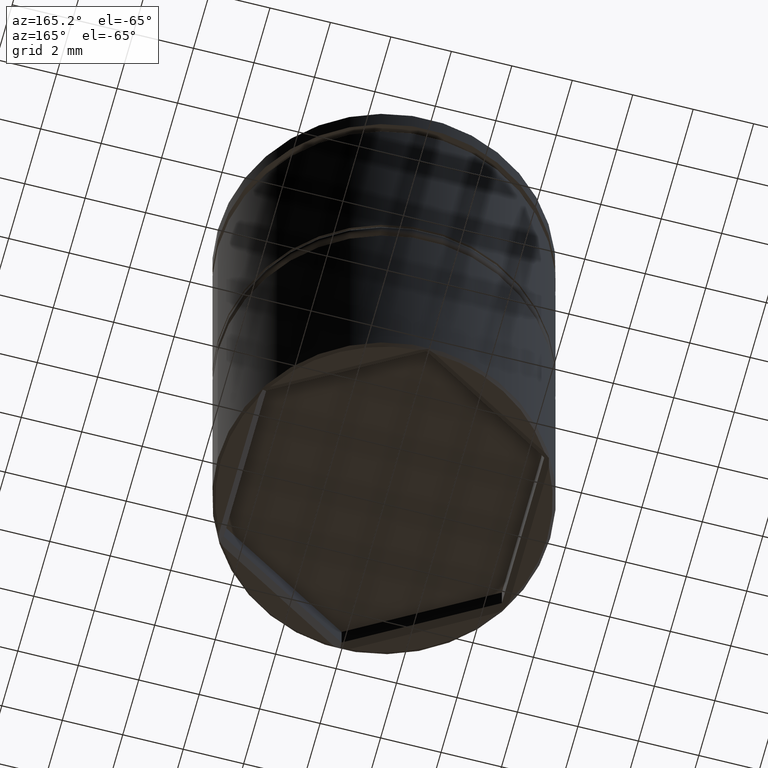
[diagram: clean part render]
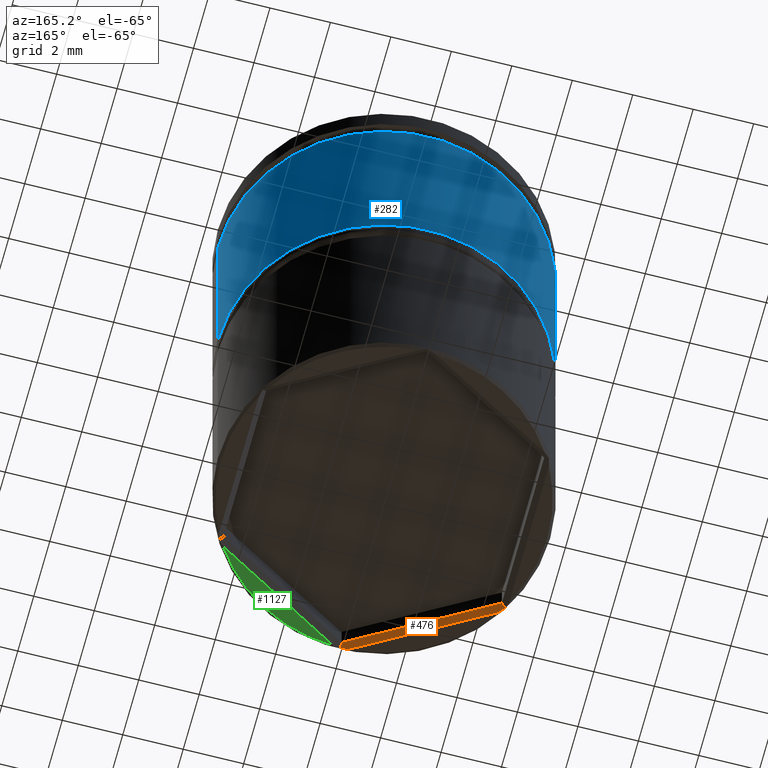
[diagram: same view with three faces highlighted in distinct colors, each labeled with its STEP entity id]
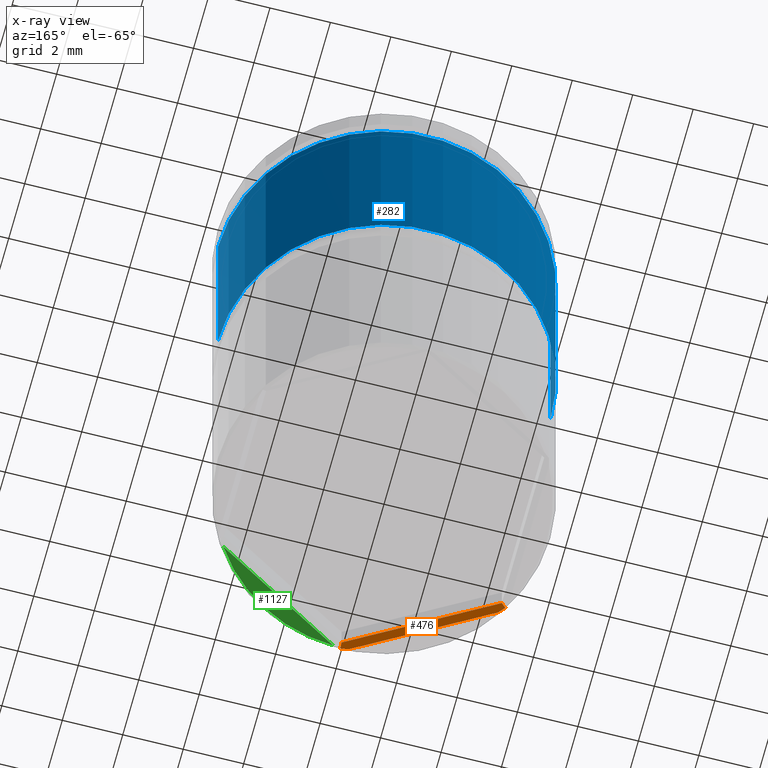
[diagram: x-ray of the same camera — body ghosted, the three highlighted faces saturated]
A machine part, auxiliary view with three faces highlighted in distinct colors.
The next image is the same camera in x-ray (body ghosted, the three faces saturated) — at least one of them is partly hidden behind the body in this view.
Their STEP definitions:

[orange] entity #476 — the highlighted planar face has unit normal (0.3536, 0.6124, -0.7071).
#16 = CARTESIAN_POINT ( 'NONE',  ( -4.733836474405099359, -2.733081762797453074, -17.43383647440510131 ) ) ;
#24 = CARTESIAN_POINT ( 'NONE',  ( -0.1717818557229343901, -5.419049164421317677, -17.47892516860715872 ) ) ;
#56 = PLANE ( 'NONE',  #658 ) ;
#62 = EDGE_CURVE ( 'NONE', #938, #1283, #570, .T. ) ;
#116 = VECTOR ( 'NONE', #1279, 1000.000000000000114 ) ;
#147 = CARTESIAN_POINT ( 'NONE',  ( -0.2575714714371473701, -5.393853625850606903, -17.50000000000000000 ) ) ;
#178 = EDGE_CURVE ( 'NONE', #817, #1276, #1154, .T. ) ;
#218 = CARTESIAN_POINT ( 'NONE',  ( -4.600000000000003197, -2.655811238272279606, -17.30000000000000426 ) ) ;
#322 = VECTOR ( 'NONE', #984, 1000.000000000000000 ) ;
#360 = CARTESIAN_POINT ( 'NONE',  ( -8.646952822150503169E-16, -5.311622476544560989, -17.30000000000000426 ) ) ;
#370 = LINE ( 'NONE', #1213, #1273 ) ;
#390 = ORIENTED_EDGE ( 'NONE', *, *, #487, .F. ) ;
#412 = CARTESIAN_POINT ( 'NONE',  ( -8.646952822150503169E-16, -5.311622476544560989, -17.30000000000000426 ) ) ;
#459 = CARTESIAN_POINT ( 'NONE',  ( -1.204079547557657958E-15, -5.466163525594906147, -17.43383647440510131 ) ) ;
#465 = CARTESIAN_POINT ( 'NONE',  ( -4.600000000000003197, -2.655811238272279606, -17.30000000000000426 ) ) ;
#476 = ADVANCED_FACE ( 'NONE', ( #1087 ), #56, .T. ) ;
#487 = EDGE_CURVE ( 'NONE', #1276, #938, #507, .T. ) ;
#489 = CARTESIAN_POINT ( 'NONE',  ( -4.542428528562857615, -2.919990250480010374, -17.50000000000000000 ) ) ;
#507 = B_SPLINE_CURVE_WITH_KNOTS ( 'NONE', 3,
 ( #1208, #24, #1331, #459 ),
 .UNSPECIFIED., .F., .F.,
 ( 4, 4 ),
 ( 1.626303258728256651E-19, 0.0002755891808806622484 ),
 .UNSPECIFIED. ) ;
#550 = CARTESIAN_POINT ( 'NONE',  ( -8.646952822150503169E-16, -5.311622476544560989, -17.30000000000000426 ) ) ;
#561 = CARTESIAN_POINT ( 'NONE',  ( -4.607143312884228514, -2.858292033175950930, -17.47892516860715872 ) ) ;
#570 = LINE ( 'NONE', #550, #116 ) ;
#658 = AXIS2_PLACEMENT_3D ( 'NONE', #360, #792, #1116 ) ;
#755 = VERTEX_POINT ( 'NONE', #218 ) ;
#792 = DIRECTION ( 'NONE',  ( 0.3535533905932736198, 0.6123724356957939152, -0.7071067811865482389 ) ) ;
#817 = VERTEX_POINT ( 'NONE', #1368 ) ;
#822 = CARTESIAN_POINT ( 'NONE',  ( -0.1000000000000005607, -5.484827557301448664, -17.50000000000000000 ) ) ;
#833 = ORIENTED_EDGE ( 'NONE', *, *, #62, .F. ) ;
#882 = CARTESIAN_POINT ( 'NONE',  ( -4.733836474405099359, -2.733081762797453074, -17.43383647440510131 ) ) ;
#903 = DIRECTION ( 'NONE',  ( 0.6546536707079767536, 0.3779644730092285299, 0.6546536707079767536 ) ) ;
#938 = VERTEX_POINT ( 'NONE', #1084 ) ;
#983 = EDGE_CURVE ( 'NONE', #1022, #755, #370, .T. ) ;
#984 = DIRECTION ( 'NONE',  ( -0.8660254037844384856, 0.5000000000000002220, 0.000000000000000000 ) ) ;
#1019 = DIRECTION ( 'NONE',  ( 0.8660254037844385966, -0.5000000000000002220, 0.000000000000000000 ) ) ;
#1022 = VERTEX_POINT ( 'NONE', #16 ) ;
#1036 = VECTOR ( 'NONE', #1019, 999.9999999999998863 ) ;
#1084 = CARTESIAN_POINT ( 'NONE',  ( -1.204079547557657958E-15, -5.466163525594906147, -17.43383647440510131 ) ) ;
#1087 = FACE_OUTER_BOUND ( 'NONE', #1199, .T. ) ;
#1091 = CARTESIAN_POINT ( 'NONE',  ( -4.670951587135924399, -2.795966650066628034, -17.45685394065973739 ) ) ;
#1092 = ORIENTED_EDGE ( 'NONE', *, *, #1149, .F. ) ;
#1116 = DIRECTION ( 'NONE',  ( 0.8660254037844384856, -0.5000000000000002220, 0.000000000000000000 ) ) ;
#1122 = ORIENTED_EDGE ( 'NONE', *, *, #1201, .F. ) ;
#1149 = EDGE_CURVE ( 'NONE', #1283, #755, #1221, .T. ) ;
#1154 = LINE ( 'NONE', #822, #1036 ) ;
#1199 = EDGE_LOOP ( 'NONE', ( #1339, #1092, #833, #390, #1336, #1122 ) ) ;
#1201 = EDGE_CURVE ( 'NONE', #1022, #817, #1254, .T. ) ;
#1208 = CARTESIAN_POINT ( 'NONE',  ( -0.2575714714371473701, -5.393853625850606903, -17.50000000000000000 ) ) ;
#1213 = CARTESIAN_POINT ( 'NONE',  ( -4.600000000000003197, -2.655811238272279606, -17.30000000000000426 ) ) ;
#1221 = LINE ( 'NONE', #465, #322 ) ;
#1254 = B_SPLINE_CURVE_WITH_KNOTS ( 'NONE', 3,
 ( #882, #1091, #561, #489 ),
 .UNSPECIFIED., .F., .F.,
 ( 4, 4 ),
 ( 0.000000000000000000, 0.0002755891808806624653 ),
 .UNSPECIFIED. ) ;
#1273 = VECTOR ( 'NONE', #903, 1000.000000000000114 ) ;
#1276 = VERTEX_POINT ( 'NONE', #147 ) ;
#1279 = DIRECTION ( 'NONE',  ( 1.792096372221770271E-15, 0.7559289460184548393, 0.6546536707079767536 ) ) ;
#1283 = VERTEX_POINT ( 'NONE', #412 ) ;
#1331 = CARTESIAN_POINT ( 'NONE',  ( -0.08590235352381503375, -5.443146059340268295, -17.45685394065973739 ) ) ;
#1336 = ORIENTED_EDGE ( 'NONE', *, *, #178, .F. ) ;
#1339 = ORIENTED_EDGE ( 'NONE', *, *, #983, .T. ) ;
#1368 = CARTESIAN_POINT ( 'NONE',  ( -4.542428528562857615, -2.919990250480010374, -17.50000000000000000 ) ) ;

[blue] entity #282 — the highlighted cylindrical surface (partial cylindrical patch) has radius 5.5 mm, axis along (-0, -0, 1).
#43 = LINE ( 'NONE', #478, #974 ) ;
#90 = CARTESIAN_POINT ( 'NONE',  ( -5.500000000000000000, 6.735557395310442023E-16, -8.500000000000000000 ) ) ;
#150 = VERTEX_POINT ( 'NONE', #1257 ) ;
#157 = VERTEX_POINT ( 'NONE', #90 ) ;
#165 = CIRCLE ( 'NONE', #345, 5.500000000000000000 ) ;
#186 = CARTESIAN_POINT ( 'NONE',  ( -5.500000000000000000, 6.735557395310442023E-16, -1.425000000000005151 ) ) ;
#187 = AXIS2_PLACEMENT_3D ( 'NONE', #782, #1320, #257 ) ;
#257 = DIRECTION ( 'NONE',  ( 1.000000000000000000, 0.000000000000000000, 0.000000000000000000 ) ) ;
#259 = VERTEX_POINT ( 'NONE', #186 ) ;
#266 = EDGE_CURVE ( 'NONE', #1086, #157, #165, .T. ) ;
#267 = ORIENTED_EDGE ( 'NONE', *, *, #966, .F. ) ;
#275 = AXIS2_PLACEMENT_3D ( 'NONE', #417, #762, #535 ) ;
#282 = ADVANCED_FACE ( 'NONE', ( #1148 ), #1364, .T. ) ;
#307 = VECTOR ( 'NONE', #690, 1000.000000000000000 ) ;
#345 = AXIS2_PLACEMENT_3D ( 'NONE', #616, #1041, #726 ) ;
#417 = CARTESIAN_POINT ( 'NONE',  ( 0.000000000000000000, 0.000000000000000000, 0.000000000000000000 ) ) ;
#478 = CARTESIAN_POINT ( 'NONE',  ( 5.500000000000000000, 0.000000000000000000, 0.000000000000000000 ) ) ;
#512 = ORIENTED_EDGE ( 'NONE', *, *, #1180, .T. ) ;
#535 = DIRECTION ( 'NONE',  ( 1.000000000000000000, 0.000000000000000000, 0.000000000000000000 ) ) ;
#559 = EDGE_CURVE ( 'NONE', #259, #150, #948, .T. ) ;
#616 = CARTESIAN_POINT ( 'NONE',  ( 0.000000000000000000, 0.000000000000000000, -8.500000000000000000 ) ) ;
#690 = DIRECTION ( 'NONE',  ( -0.000000000000000000, -0.000000000000000000, 1.000000000000000000 ) ) ;
#726 = DIRECTION ( 'NONE',  ( 1.000000000000000000, 0.000000000000000000, 0.000000000000000000 ) ) ;
#762 = DIRECTION ( 'NONE',  ( -0.000000000000000000, -0.000000000000000000, 1.000000000000000000 ) ) ;
#782 = CARTESIAN_POINT ( 'NONE',  ( 0.000000000000000000, 0.000000000000000000, -1.425000000000005151 ) ) ;
#894 = DIRECTION ( 'NONE',  ( -0.000000000000000000, -0.000000000000000000, 1.000000000000000000 ) ) ;
#948 = CIRCLE ( 'NONE', #187, 5.500000000000000000 ) ;
#966 = EDGE_CURVE ( 'NONE', #1086, #150, #43, .T. ) ;
#974 = VECTOR ( 'NONE', #894, 1000.000000000000000 ) ;
#1000 = EDGE_LOOP ( 'NONE', ( #1166, #512, #1028, #267 ) ) ;
#1028 = ORIENTED_EDGE ( 'NONE', *, *, #559, .T. ) ;
#1041 = DIRECTION ( 'NONE',  ( -0.000000000000000000, -0.000000000000000000, 1.000000000000000000 ) ) ;
#1086 = VERTEX_POINT ( 'NONE', #1171 ) ;
#1119 = CARTESIAN_POINT ( 'NONE',  ( -5.500000000000000000, 6.735557395310442023E-16, 0.000000000000000000 ) ) ;
#1148 = FACE_OUTER_BOUND ( 'NONE', #1000, .T. ) ;
#1166 = ORIENTED_EDGE ( 'NONE', *, *, #266, .T. ) ;
#1171 = CARTESIAN_POINT ( 'NONE',  ( 5.500000000000000000, 0.000000000000000000, -8.500000000000000000 ) ) ;
#1180 = EDGE_CURVE ( 'NONE', #157, #259, #1215, .T. ) ;
#1215 = LINE ( 'NONE', #1119, #307 ) ;
#1257 = CARTESIAN_POINT ( 'NONE',  ( 5.500000000000000000, 0.000000000000000000, -1.425000000000005151 ) ) ;
#1320 = DIRECTION ( 'NONE',  ( 0.000000000000000000, 0.000000000000000000, -1.000000000000000000 ) ) ;
#1364 = CYLINDRICAL_SURFACE ( 'NONE', #275, 5.500000000000000000 ) ;

[green] entity #1127 — the highlighted planar face has unit normal (0, 0, -1).
#107 = ORIENTED_EDGE ( 'NONE', *, *, #1204, .T. ) ;
#112 = DIRECTION ( 'NONE',  ( -1.000000000000000000, 0.000000000000000000, -0.000000000000000000 ) ) ;
#235 = DIRECTION ( 'NONE',  ( 0.000000000000000000, 0.000000000000000000, -1.000000000000000000 ) ) ;
#380 = CIRCLE ( 'NONE', #493, 5.400000000000003908 ) ;
#402 = VECTOR ( 'NONE', #1198, 1000.000000000000114 ) ;
#466 = EDGE_LOOP ( 'NONE', ( #107, #502 ) ) ;
#475 = VERTEX_POINT ( 'NONE', #589 ) ;
#479 = LINE ( 'NONE', #668, #402 ) ;
#493 = AXIS2_PLACEMENT_3D ( 'NONE', #1328, #1114, #905 ) ;
#502 = ORIENTED_EDGE ( 'NONE', *, *, #1188, .T. ) ;
#589 = CARTESIAN_POINT ( 'NONE',  ( 4.542428528562859391, -2.919990250480007266, -17.50000000000000000 ) ) ;
#644 = CARTESIAN_POINT ( 'NONE',  ( 0.2575714714371426517, -5.393853625850607791, -17.50000000000000000 ) ) ;
#668 = CARTESIAN_POINT ( 'NONE',  ( 4.700000000000002842, -2.829016319029166393, -17.50000000000000000 ) ) ;
#741 = FACE_OUTER_BOUND ( 'NONE', #466, .T. ) ;
#760 = PLANE ( 'NONE',  #1235 ) ;
#815 = VERTEX_POINT ( 'NONE', #644 ) ;
#905 = DIRECTION ( 'NONE',  ( -1.000000000000000000, 0.000000000000000000, 0.000000000000000000 ) ) ;
#1114 = DIRECTION ( 'NONE',  ( 0.000000000000000000, 0.000000000000000000, -1.000000000000000000 ) ) ;
#1127 = ADVANCED_FACE ( 'NONE', ( #741 ), #760, .T. ) ;
#1165 = CARTESIAN_POINT ( 'NONE',  ( 0.000000000000000000, 5.500000000000000000, -17.50000000000000000 ) ) ;
#1188 = EDGE_CURVE ( 'NONE', #815, #475, #479, .T. ) ;
#1198 = DIRECTION ( 'NONE',  ( 0.8660254037844385966, 0.4999999999999999445, 0.000000000000000000 ) ) ;
#1204 = EDGE_CURVE ( 'NONE', #475, #815, #380, .T. ) ;
#1235 = AXIS2_PLACEMENT_3D ( 'NONE', #1165, #235, #112 ) ;
#1328 = CARTESIAN_POINT ( 'NONE',  ( 0.000000000000000000, 0.000000000000000000, -17.50000000000000000 ) ) ;